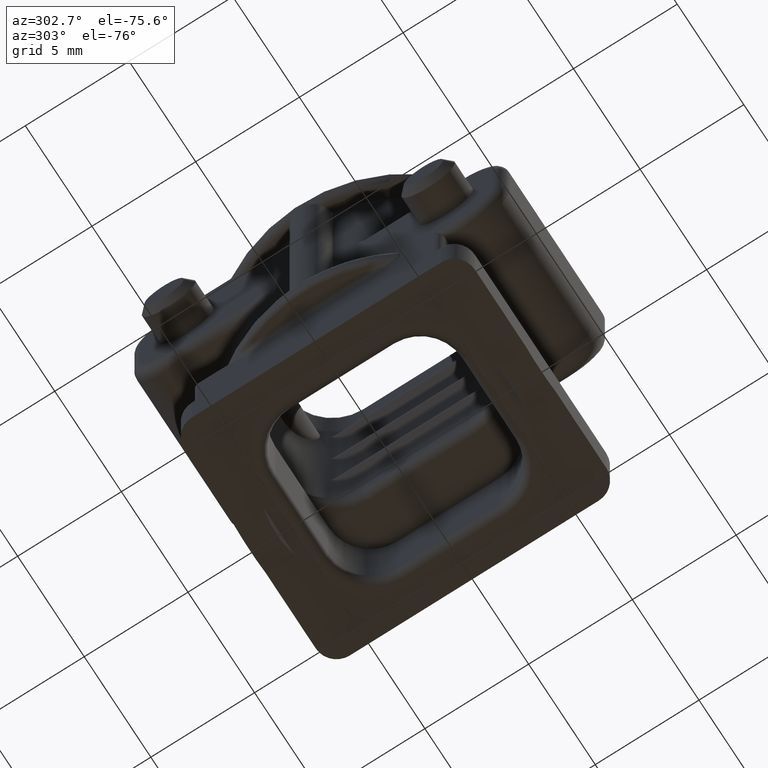
[diagram: clean part render]
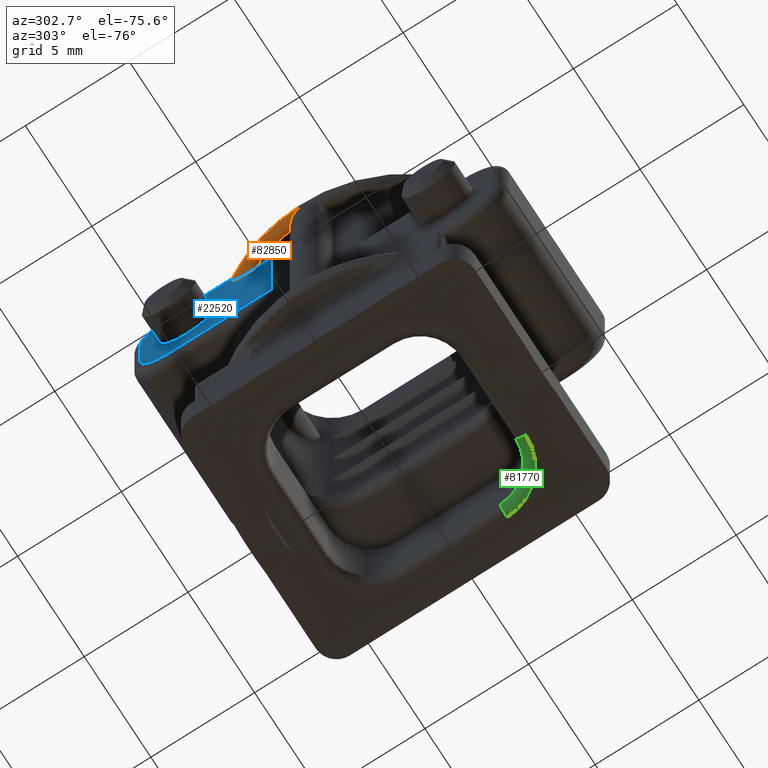
[diagram: same view with three faces highlighted in distinct colors, each labeled with its STEP entity id]
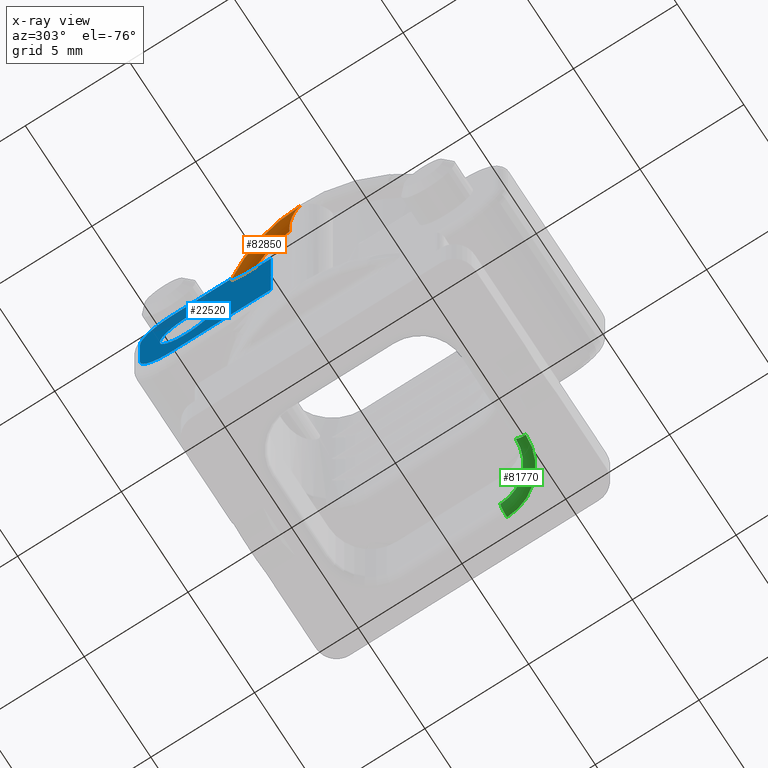
[diagram: x-ray of the same camera — body ghosted, the three highlighted faces saturated]
A machine part, auxiliary view with three faces highlighted in distinct colors.
The next image is the same camera in x-ray (body ghosted, the three faces saturated) — at least one of them is partly hidden behind the body in this view.
Their STEP definitions:

[orange] entity #82850 — the highlighted toroidal blend (fillet) surface has major radius 7.6 mm and minor (blend) radius 0.5 mm.
#11130=CARTESIAN_POINT('',(25.2744043500691,-40.2911187952982,
-3.81774899736046));
#11140=DIRECTION('',(0.,0.,-1.));
#11150=DIRECTION('',(-1.,0.,0.));
#11160=AXIS2_PLACEMENT_3D('',#11130,#11140,#11150);
#11170=CIRCLE('',#11160,7.6);
#12160=CARTESIAN_POINT('',(28.234134067477,-47.2911187952982,
-3.81774899735987));
#12170=VERTEX_POINT('',#12160);
#12200=CARTESIAN_POINT('',(26.1688467888733,-47.8383018938897,
-3.81774899736046));
#12210=VERTEX_POINT('',#12200);
#12220=EDGE_CURVE('',#12170,#12210,#11170,.T.);
#21240=CARTESIAN_POINT('',(34.6744043500691,-47.2911187952982,
-5.0177489973605));
#21250=DIRECTION('',(0.,-1.,0.));
#21260=DIRECTION('',(1.,0.,0.));
#21270=AXIS2_PLACEMENT_3D('',#21240,#21250,#21260);
#21280=PLANE('',#21270);
#21580=CARTESIAN_POINT('',(29.349941124532,-47.2911187952982,
-4.31774899736046));
#21590=VERTEX_POINT('',#21580);
#21620=CARTESIAN_POINT('',(25.2744043500691,-40.2911187952982,
-4.31774899736046));
#21630=DIRECTION('',(0.,0.,-1.));
#21640=DIRECTION('',(-1.,0.,0.));
#21650=AXIS2_PLACEMENT_3D('',#21620,#21630,#21640);
#21660=TOROIDAL_SURFACE('',#21650,7.6,0.5);
#21670=CARTESIAN_POINT('',(28.2341340660951,-47.2911187952982,
-3.81774899736046));
#21680=CARTESIAN_POINT('',(28.2617668507409,-47.2911187952982,
-3.81774899734903));
#21690=CARTESIAN_POINT('',(28.2893893469122,-47.2911187952982,
-3.81809613259291));
#21700=CARTESIAN_POINT('',(28.3169878803172,-47.2911187952982,
-3.8188160237318));
#21710=CARTESIAN_POINT('',(28.344586408875,-47.2911187952982,
-3.81953591474424));
#21720=CARTESIAN_POINT('',(28.372161139452,-47.2911187952982,
-3.82062849622026));
#21730=CARTESIAN_POINT('',(28.3996983132343,-47.2911187952982,
-3.82212332592674));
#21740=CARTESIAN_POINT('',(28.4272354574771,-47.2911187952982,
-3.82361815402971));
#21750=CARTESIAN_POINT('',(28.4547352877548,-47.2911187952982,
-3.8255151492305));
#21760=CARTESIAN_POINT('',(28.4821831735656,-47.2911187952982,
-3.82784899415511));
#21770=CARTESIAN_POINT('',(28.5096309913831,-47.2911187952982,
-3.83018283329837));
#21780=CARTESIAN_POINT('',(28.5370272235013,-47.2911187952982,
-3.8329534238558));
#21790=CARTESIAN_POINT('',(28.5643551183012,-47.2911187952982,
-3.83620213202777));
#21800=CARTESIAN_POINT('',(28.5916828868742,-47.2911187952982,
-3.83945082519402));
#21810=CARTESIAN_POINT('',(28.6189428515391,-47.2911187952979,
-3.84317752054874));
#21820=CARTESIAN_POINT('',(28.6461142096592,-47.2911187952979,
-3.84743232150843));
#21830=CARTESIAN_POINT('',(28.6732762543213,-47.2911187952979,
-3.85168566406071));
#21840=CARTESIAN_POINT('',(28.700372349795,-47.2911187952916,
-3.85646880979826));
#21850=CARTESIAN_POINT('',(28.7274516395234,-47.2911187952916,
-3.86186508447392));
#21860=CARTESIAN_POINT('',(28.7545194386964,-47.2911187952916,
-3.86725906934826));
#21870=CARTESIAN_POINT('',(28.781519623472,-47.2911187952982,
-3.87325730373493));
#21880=CARTESIAN_POINT('',(28.8083549990717,-47.2911187952982,
-3.87992774075186));
#21890=CARTESIAN_POINT('',(28.8351904397147,-47.2911187952982,
-3.88659819393652));
#21900=CARTESIAN_POINT('',(28.8618621638242,-47.2911187952982,
-3.89394051677914));
#21910=CARTESIAN_POINT('',(28.8882734864024,-47.2911187952982,
-3.90203759428819));
#21920=CARTESIAN_POINT('',(28.9146846597917,-47.2911187952982,
-3.91013462605951));
#21930=CARTESIAN_POINT('',(28.940837918133,-47.2911187952982,
-3.91898616256404));
#21940=CARTESIAN_POINT('',(28.9666291616619,-47.2911187952982,
-3.92869985181431));
#21950=CARTESIAN_POINT('',(28.9795249123902,-47.2911187952982,
-3.93355674501075));
#21960=CARTESIAN_POINT('',(28.9923303318061,-47.2911187952982,
-3.93862975954585));
#21970=CARTESIAN_POINT('',(29.0050306684643,-47.2911187952982,
-3.94393582631216));
#21980=CARTESIAN_POINT('',(29.0177309597933,-47.2911187952982,
-3.94924187414038));
#21990=CARTESIAN_POINT('',(29.0303263923132,-47.2911187952977,
-3.95478099977046));
#22000=CARTESIAN_POINT('',(29.0427997425518,-47.2911187952977,
-3.96057304199236));
#22010=CARTESIAN_POINT('',(29.0552724408358,-47.2911187952977,
-3.96636478147694));
#22020=CARTESIAN_POINT('',(29.0676189576271,-47.2911187952974,
-3.9724065145281));
#22030=CARTESIAN_POINT('',(29.0798662768933,-47.2911187952974,
-3.97874838640195));
#22040=CARTESIAN_POINT('',(29.0921086250104,-47.2911187952974,
-3.98508768412956));
#22050=CARTESIAN_POINT('',(29.1042278084583,-47.2911187952821,
-3.99171570623167));
#22060=CARTESIAN_POINT('',(29.1161733830871,-47.2911187952821,
-3.99864880529118));
#22070=CARTESIAN_POINT('',(29.128118966741,-47.2911187952821,
-4.00558190958875));
#22080=CARTESIAN_POINT('',(29.1398912042729,-47.2911187952707,
-4.01282010116949));
#22090=CARTESIAN_POINT('',(29.1514386744529,-47.2911187952707,
-4.02038291720448));
#22100=CARTESIAN_POINT('',(29.1629861168525,-47.2911187952707,
-4.02794571504514));
#22110=CARTESIAN_POINT('',(29.1743092871208,-47.29111879529,
-4.03583325227898));
#22120=CARTESIAN_POINT('',(29.1853536564091,-47.29111879529,
-4.04406957063015));
#22130=CARTESIAN_POINT('',(29.193250795672,-47.29111879529,
-4.0499588479021));
#22140=CARTESIAN_POINT('',(29.2010055118467,-47.291118795298,
-4.05602666073249));
#22150=CARTESIAN_POINT('',(29.2085959414436,-47.291118795298,
-4.06228359954816));
#22160=CARTESIAN_POINT('',(29.2161871904208,-47.291118795298,
-4.06854121379498));
#22170=CARTESIAN_POINT('',(29.2236053898536,-47.2911187952979,
-4.07497908570713));
#22180=CARTESIAN_POINT('',(29.2308760489727,-47.2911187952979,
-4.08165788541135));
#22190=CARTESIAN_POINT('',(29.2454096133672,-47.2911187952979,
-4.0950083621687));
#22200=CARTESIAN_POINT('',(29.2592643819548,-47.291118795288,
-4.10925079498732));
#22210=CARTESIAN_POINT('',(29.2720425410808,-47.291118795288,
-4.12435950871774));
#22220=CARTESIAN_POINT('',(29.2848205723018,-47.291118795288,
-4.1394680712152));
#22230=CARTESIAN_POINT('',(29.2965205216759,-47.2911187952982,
-4.15543993219067));
#22240=CARTESIAN_POINT('',(29.3067573885085,-47.2911187952982,
-4.17223802456296));
#22250=CARTESIAN_POINT('',(29.3118691497948,-47.2911187952982,
-4.18062612217902));
#22260=CARTESIAN_POINT('',(29.3166477893682,-47.291118795298,
-4.18927268802461));
#22270=CARTESIAN_POINT('',(29.3210221471526,-47.291118795298,
-4.19816037736906));
#22280=CARTESIAN_POINT('',(29.3253954756594,-47.291118795298,
-4.20704597545803));
#22290=CARTESIAN_POINT('',(29.3293583319413,-47.2911187952977,
-4.21616244888218));
#22300=CARTESIAN_POINT('',(29.3328379029034,-47.2911187952977,
-4.22545485291512));
#22310=CARTESIAN_POINT('',(29.3356112567838,-47.2911187952977,
-4.23286126165454));
#22320=CARTESIAN_POINT('',(29.3380773165981,-47.2911187952981,
-4.2403778818895));
#22330=CARTESIAN_POINT('',(29.3402083617646,-47.2911187952981,
-4.24797251397694));
#22340=CARTESIAN_POINT('',(29.3423394366998,-47.2911187952981,
-4.25556725215421));
#22350=CARTESIAN_POINT('',(29.3441351749372,-47.2911187952982,
-4.26323878513008));
#22360=CARTESIAN_POINT('',(29.3455779155125,-47.2911187952982,
-4.27095512273127));
#22370=CARTESIAN_POINT('',(29.3470201859384,-47.2911187952982,
-4.27866894579074));
#22380=CARTESIAN_POINT('',(29.3481115883914,-47.2911187952982,
-4.28643103623674));
#22390=CARTESIAN_POINT('',(29.3488428257513,-47.2911187952982,
-4.29424897498252));
#22400=CARTESIAN_POINT('',(29.3495736854138,-47.2911187952982,
-4.30206287562044));
#22410=CARTESIAN_POINT('',(29.349941124532,-47.2911187952982,
-4.30991245681078));
#22420=CARTESIAN_POINT('',(29.349941124532,-47.2911187952982,
-4.31774899736046));
#22430=B_SPLINE_CURVE_WITH_KNOTS('',3,(#21670,#21680,#21690,#21700,
#21710,#21720,#21730,#21740,#21750,#21760,#21770,#21780,#21790,#21800,
#21810,#21820,#21830,#21840,#21850,#21860,#21870,#21880,#21890,#21900,
#21910,#21920,#21930,#21940,#21950,#21960,#21970,#21980,#21990,#22000,
#22010,#22020,#22030,#22040,#22050,#22060,#22070,#22080,#22090,#22100,
#22110,#22120,#22130,#22140,#22150,#22160,#22170,#22180,#22190,#22200,
#22210,#22220,#22230,#22240,#22250,#22260,#22270,#22280,#22290,#22300,
#22310,#22320,#22330,#22340,#22350,#22360,#22370,#22380,#22390,#22400,
#22410,#22420),.UNSPECIFIED.,.F.,.F.,(4,3,3,3,3,3,3,3,3,3,3,3,3,3,3,3,3,
3,3,3,3,3,3,3,3,4),(0.,0.0828630328127764,0.165642296671064,
0.248328865766318,0.330928147989326,0.413459617645087,0.496073511777523,
0.578976313421166,0.661906837891696,0.744688078588756,0.786003819155731,
0.827277485990448,0.868563496174761,0.909970776366495,0.951400582243639,
0.992774647013941,1.02230643422067,1.05183565508567,1.11118841996579,
1.17038687921176,1.19998488616794,1.22973928973734,1.25343959922119,
1.27704887670283,1.30057864509959,1.32411284661636),.UNSPECIFIED.);
#22440=SURFACE_CURVE('',#22430,(#21660,#21280),.CURVE_3D.);
#22450=EDGE_CURVE('',#12170,#21590,#22440,.T.);
#23030=CARTESIAN_POINT('',(25.2744043500691,-47.3911187952982,
2.03225100263957));
#23040=DIRECTION('',(0.,0.,1.));
#23050=DIRECTION('',(0.,-1.,0.));
#23060=AXIS2_PLACEMENT_3D('',#23030,#23040,#23050);
#23070=CYLINDRICAL_SURFACE('',#23060,1.);
#23080=CARTESIAN_POINT('',(25.2744043500691,-40.2911187952982,
-4.31774899736046));
#23090=DIRECTION('',(0.,0.,-1.));
#23100=DIRECTION('',(-1.,0.,0.));
#23110=AXIS2_PLACEMENT_3D('',#23080,#23090,#23100);
#23120=TOROIDAL_SURFACE('',#23110,7.6,0.5);
#23130=CARTESIAN_POINT('',(25.2744043500691,-48.3911187952982,
-4.31774899736046));
#23140=CARTESIAN_POINT('',(25.317118778718,-48.3911187952982,
-4.28947115502783));
#23150=CARTESIAN_POINT('',(25.3598307285892,-48.3883854061547,
-4.26119444396546));
#23160=CARTESIAN_POINT('',(25.4023544055021,-48.38289940779,
-4.23315643197823));
#23170=CARTESIAN_POINT('',(25.4448608326167,-48.3774156348295,
-4.20512979365586));
#23180=CARTESIAN_POINT('',(25.4872239020171,-48.3691720165708,
-4.17731118624549));
#23190=CARTESIAN_POINT('',(25.5291552722855,-48.3581255003576,
-4.15002156139031));
#23200=CARTESIAN_POINT('',(25.5710655729296,-48.3470845347846,
-4.12274564899293));
#23210=CARTESIAN_POINT('',(25.6126381079587,-48.3332166349644,
-4.0959361551949));
#23220=CARTESIAN_POINT('',(25.6535050397346,-48.3164742227395,
-4.06999973954942));
#23230=CARTESIAN_POINT('',(25.673940786682,-48.30810208212,
-4.05703008404021));
#23240=CARTESIAN_POINT('',(25.6942303511187,-48.2989989491583,
-4.04426012646269));
#23250=CARTESIAN_POINT('',(25.7143160765821,-48.2891598148938,
-4.03175355998652));
#23260=CARTESIAN_POINT('',(25.7344087705136,-48.279317267076,
-4.01924265452796));
#23270=CARTESIAN_POINT('',(25.7542660917566,-48.2687564566531,
-4.00701429570952));
#23280=CARTESIAN_POINT('',(25.7739285387879,-48.2574187346291,
-3.99507673721049));
#23290=CARTESIAN_POINT('',(25.7935919432626,-48.246080460526,
-3.98313859742391));
#23300=CARTESIAN_POINT('',(25.8130481044691,-48.2339689018274,
-3.97149929473249));
#23310=CARTESIAN_POINT('',(25.8322165067527,-48.2210860222746,
-3.96024869198106));
#23320=CARTESIAN_POINT('',(25.8513848820921,-48.2082031608306,
-3.94899810504403));
#23330=CARTESIAN_POINT('',(25.8702652071632,-48.1945493080414,
-3.938136264406));
#23340=CARTESIAN_POINT('',(25.8887817940949,-48.180131061535,
-3.92775659539764));
#23350=CARTESIAN_POINT('',(25.9073052312582,-48.1657074809826,
-3.91737308641936));
#23360=CARTESIAN_POINT('',(25.9254357062473,-48.1505450118946,
-3.90748718385401));
#23370=CARTESIAN_POINT('',(25.9431856322715,-48.1345780050574,
-3.8981543814759));
#23380=CARTESIAN_POINT('',(25.960945712292,-48.1186018641579,
-3.88881624018871));
#23390=CARTESIAN_POINT('',(25.9783456270223,-48.1017960837793,
-3.88002217286255));
#23400=CARTESIAN_POINT('',(25.9952593343284,-48.084204714697,
-3.87191968429773));
#23410=CARTESIAN_POINT('',(26.0121730022573,-48.0666133865696,
-3.86381721459652));
#23420=CARTESIAN_POINT('',(26.0285992473815,-48.0482378327559,
-3.85640670579848));
#23430=CARTESIAN_POINT('',(26.0444263538991,-48.0291361254842,
-3.84983781164049));
#23440=CARTESIAN_POINT('',(26.0523398603004,-48.0195853284005,
-3.84655338400924));
#23450=CARTESIAN_POINT('',(26.060103732444,-48.0098532938264,
-3.84347943981907));
#23460=CARTESIAN_POINT('',(26.0677055500923,-47.9999481688025,
-3.84063511640087));
#23470=CARTESIAN_POINT('',(26.0753047763355,-47.9900464203648,
-3.83779176259212));
#23480=CARTESIAN_POINT('',(26.0827693407061,-47.9799358962536,
-3.83516772803519));
#23490=CARTESIAN_POINT('',(26.0900764273043,-47.9696333261604,
-3.83279014996445));
#23500=CARTESIAN_POINT('',(26.0973833869049,-47.9593309351266,
-3.83041261321616));
#23510=CARTESIAN_POINT('',(26.1045322355265,-47.9488373258007,
-3.82828177030007));
#23520=CARTESIAN_POINT('',(26.1115008157367,-47.9381741006988,
-3.82642420015112));
#23530=CARTESIAN_POINT('',(26.1184693888674,-47.9275108864299,
-3.82456663188931));
#23540=CARTESIAN_POINT('',(26.1252575274218,-47.9166782952238,
-3.82298239193049));
#23550=CARTESIAN_POINT('',(26.1318457277391,-47.9057004543761,
-3.82169659316577));
#23560=CARTESIAN_POINT('',(26.1384339352892,-47.8947226014767,
-3.82041079298949));
#23570=CARTESIAN_POINT('',(26.1448220407102,-47.8835997750305,
-3.81942346905822));
#23580=CARTESIAN_POINT('',(26.1509937615474,-47.8723578249748,
-3.81875802040635));
#23590=CARTESIAN_POINT('',(26.1571655040937,-47.8611158353753,
-3.81809256941377));
#23600=CARTESIAN_POINT('',(26.1631207129145,-47.8497550220636,
-3.81774899736046));
#23610=CARTESIAN_POINT('',(26.1688467888733,-47.8383018938898,
-3.81774899736046));
#23620=B_SPLINE_CURVE_WITH_KNOTS('',3,(#23130,#23140,#23150,#23160,
#23170,#23180,#23190,#23200,#23210,#23220,#23230,#23240,#23250,#23260,
#23270,#23280,#23290,#23300,#23310,#23320,#23330,#23340,#23350,#23360,
#23370,#23380,#23390,#23400,#23410,#23420,#23430,#23440,#23450,#23460,
#23470,#23480,#23490,#23500,#23510,#23520,#23530,#23540,#23550,#23560,
#23570,#23580,#23590,#23600,#23610),.UNSPECIFIED.,.F.,.F.,(4,3,3,3,3,3,3
,3,3,3,3,3,3,3,3,3,4),(0.,0.15367931288939,0.307391723260433,
0.461105000399218,0.537973049431023,0.614839106419516,0.691864257961331,
0.768905373858872,0.845809266634203,0.922887400847619,0.999971232127972,
1.0384271714949,1.07691528339268,1.11551060416675,1.15412707138077,
1.19269498645642,1.23116664856787),.UNSPECIFIED.);
#23630=SURFACE_CURVE('',#23620,(#23120,#23070),.CURVE_3D.);
#23640=CARTESIAN_POINT('',(25.2744043500691,-48.3911187952982,
-4.31774899736046));
#23650=VERTEX_POINT('',#23640);
#23660=EDGE_CURVE('',#23650,#12210,#23630,.T.);
#38290=CARTESIAN_POINT('',(25.2744043500691,-40.2911187952982,
-4.31774899736046));
#38300=DIRECTION('',(0.,0.,-1.));
#38310=DIRECTION('',(-1.,0.,0.));
#38320=AXIS2_PLACEMENT_3D('',#38290,#38300,#38310);
#38330=CIRCLE('',#38320,8.1);
#38340=EDGE_CURVE('',#21590,#23650,#38330,.T.);
#82790=ORIENTED_EDGE('',*,*,#12220,.T.);
#82800=ORIENTED_EDGE('',*,*,#22450,.F.);
#82810=ORIENTED_EDGE('',*,*,#38340,.F.);
#82820=ORIENTED_EDGE('',*,*,#23660,.F.);
#82830=EDGE_LOOP('',(#82820,#82810,#82800,#82790));
#82840=FACE_OUTER_BOUND('',#82830,.T.);
#82850=ADVANCED_FACE('',(#82840),#23120,.T.);

[blue] entity #22520 — the highlighted planar face has unit normal (-1, 0, 0).
#8500=CARTESIAN_POINT('',(29.349941124532,-47.2911187952982,
-4.5177489973605));
#8510=VERTEX_POINT('',#8500);
#8540=CARTESIAN_POINT('',(0.,-47.2911187952982,-4.5177489973605));
#8550=DIRECTION('',(1.,0.,0.));
#8560=VECTOR('',#8550,1.);
#8570=LINE('',#8540,#8560);
#8580=CARTESIAN_POINT('',(32.2244043245911,-47.2911187952982,
-4.5177489973605));
#8590=VERTEX_POINT('',#8580);
#8600=EDGE_CURVE('',#8510,#8590,#8570,.T.);
#11350=CARTESIAN_POINT('',(33.7244043245911,-47.2911187952982,
-0.217748997360453));
#11360=VERTEX_POINT('',#11350);
#11520=CARTESIAN_POINT('',(33.7244043245911,-47.2911187952982,
-3.0177489973605));
#11530=VERTEX_POINT('',#11520);
#11560=CARTESIAN_POINT('',(33.7244043245911,-47.2911187952982,0.));
#11570=DIRECTION('',(0.,0.,-1.));
#11580=VECTOR('',#11570,1.);
#11590=LINE('',#11560,#11580);
#11600=EDGE_CURVE('',#11360,#11530,#11590,.T.);
#12080=CARTESIAN_POINT('',(27.4168328786319,-47.2911187952982,
-3.81774899736046));
#12090=VERTEX_POINT('',#12080);
#12120=CARTESIAN_POINT('',(0.,-47.2911187952982,-3.81774899736046));
#12130=DIRECTION('',(-1.,0.,0.));
#12140=VECTOR('',#12130,1.);
#12150=LINE('',#12120,#12140);
#12160=CARTESIAN_POINT('',(28.234134067477,-47.2911187952982,
-3.81774899735987));
#12170=VERTEX_POINT('',#12160);
#12180=EDGE_CURVE('',#12170,#12090,#12150,.T.);
#12480=CARTESIAN_POINT('',(27.4168328786319,-47.2911187952982,
1.28225100263955));
#12490=VERTEX_POINT('',#12480);
#12520=CARTESIAN_POINT('',(27.4168328786319,-47.2911187952982,
2.83225100263954));
#12530=DIRECTION('',(0.,0.,-1.));
#12540=VECTOR('',#12530,1.);
#12550=LINE('',#12520,#12540);
#12560=EDGE_CURVE('',#12490,#12090,#12550,.T.);
#13530=CARTESIAN_POINT('',(32.2244043245911,-47.2911187952982,
1.28225100263955));
#13540=VERTEX_POINT('',#13530);
#13570=CARTESIAN_POINT('',(0.,-47.2911187952982,1.28225100263955));
#13580=DIRECTION('',(1.,0.,0.));
#13590=VECTOR('',#13580,1.);
#13600=LINE('',#13570,#13590);
#13610=EDGE_CURVE('',#12490,#13540,#13600,.T.);
#14450=CARTESIAN_POINT('',(32.2244043245911,-47.2911187952982,
-3.0177489973605));
#14460=DIRECTION('',(-2.98367354015269E-16,-1.,0.));
#14470=DIRECTION('',(-1.,2.98367354015269E-16,0.));
#14480=AXIS2_PLACEMENT_3D('',#14450,#14460,#14470);
#14490=CIRCLE('',#14480,1.5);
#14500=EDGE_CURVE('',#8590,#11530,#14490,.T.);
#21240=CARTESIAN_POINT('',(34.6744043500691,-47.2911187952982,
-5.0177489973605));
#21250=DIRECTION('',(0.,-1.,0.));
#21260=DIRECTION('',(1.,0.,0.));
#21270=AXIS2_PLACEMENT_3D('',#21240,#21250,#21260);
#21280=PLANE('',#21270);
#21290=CARTESIAN_POINT('',(31.4744043245911,-47.2911187952982,
-1.41774899736045));
#21300=DIRECTION('',(0.,-1.,0.));
#21310=DIRECTION('',(1.,0.,0.));
#21320=AXIS2_PLACEMENT_3D('',#21290,#21300,#21310);
#21330=CIRCLE('',#21320,1.3);
#21340=CARTESIAN_POINT('',(32.7744043245911,-47.2911187952982,
-1.41774899736045));
#21350=VERTEX_POINT('',#21340);
#21360=CARTESIAN_POINT('',(30.1744043245911,-47.2911187952982,
-1.41774899736045));
#21370=VERTEX_POINT('',#21360);
#21380=EDGE_CURVE('',#21350,#21370,#21330,.T.);
#21390=ORIENTED_EDGE('',*,*,#21380,.F.);
#21400=EDGE_CURVE('',#21370,#21350,#21330,.T.);
#21410=ORIENTED_EDGE('',*,*,#21400,.F.);
#21420=EDGE_LOOP('',(#21410,#21390));
#21430=FACE_BOUND('',#21420,.T.);
#21440=CARTESIAN_POINT('',(32.2244043245911,-47.2911187952982,
-0.217748997360453));
#21450=DIRECTION('',(2.98367354015269E-16,1.,0.));
#21460=DIRECTION('',(1.,-2.98367354015269E-16,0.));
#21470=AXIS2_PLACEMENT_3D('',#21440,#21450,#21460);
#21480=CIRCLE('',#21470,1.5);
#21490=EDGE_CURVE('',#13540,#11360,#21480,.T.);
#21500=ORIENTED_EDGE('',*,*,#21490,.F.);
#21510=ORIENTED_EDGE('',*,*,#11600,.F.);
#21520=ORIENTED_EDGE('',*,*,#14500,.T.);
#21530=ORIENTED_EDGE('',*,*,#8600,.T.);
#21540=CARTESIAN_POINT('',(29.349941124532,-47.2911187952982,
9.1322510026395));
#21550=DIRECTION('',(0.,0.,-1.));
#21560=VECTOR('',#21550,1.);
#21570=LINE('',#21540,#21560);
#21580=CARTESIAN_POINT('',(29.349941124532,-47.2911187952982,
-4.31774899736046));
#21590=VERTEX_POINT('',#21580);
#21600=EDGE_CURVE('',#21590,#8510,#21570,.T.);
#21610=ORIENTED_EDGE('',*,*,#21600,.T.);
#21620=CARTESIAN_POINT('',(25.2744043500691,-40.2911187952982,
-4.31774899736046));
#21630=DIRECTION('',(0.,0.,-1.));
#21640=DIRECTION('',(-1.,0.,0.));
#21650=AXIS2_PLACEMENT_3D('',#21620,#21630,#21640);
#21660=TOROIDAL_SURFACE('',#21650,7.6,0.5);
#21670=CARTESIAN_POINT('',(28.2341340660951,-47.2911187952982,
-3.81774899736046));
#21680=CARTESIAN_POINT('',(28.2617668507409,-47.2911187952982,
-3.81774899734903));
#21690=CARTESIAN_POINT('',(28.2893893469122,-47.2911187952982,
-3.81809613259291));
#21700=CARTESIAN_POINT('',(28.3169878803172,-47.2911187952982,
-3.8188160237318));
#21710=CARTESIAN_POINT('',(28.344586408875,-47.2911187952982,
-3.81953591474424));
#21720=CARTESIAN_POINT('',(28.372161139452,-47.2911187952982,
-3.82062849622026));
#21730=CARTESIAN_POINT('',(28.3996983132343,-47.2911187952982,
-3.82212332592674));
#21740=CARTESIAN_POINT('',(28.4272354574771,-47.2911187952982,
-3.82361815402971));
#21750=CARTESIAN_POINT('',(28.4547352877548,-47.2911187952982,
-3.8255151492305));
#21760=CARTESIAN_POINT('',(28.4821831735656,-47.2911187952982,
-3.82784899415511));
#21770=CARTESIAN_POINT('',(28.5096309913831,-47.2911187952982,
-3.83018283329837));
#21780=CARTESIAN_POINT('',(28.5370272235013,-47.2911187952982,
-3.8329534238558));
#21790=CARTESIAN_POINT('',(28.5643551183012,-47.2911187952982,
-3.83620213202777));
#21800=CARTESIAN_POINT('',(28.5916828868742,-47.2911187952982,
-3.83945082519402));
#21810=CARTESIAN_POINT('',(28.6189428515391,-47.2911187952979,
-3.84317752054874));
#21820=CARTESIAN_POINT('',(28.6461142096592,-47.2911187952979,
-3.84743232150843));
#21830=CARTESIAN_POINT('',(28.6732762543213,-47.2911187952979,
-3.85168566406071));
#21840=CARTESIAN_POINT('',(28.700372349795,-47.2911187952916,
-3.85646880979826));
#21850=CARTESIAN_POINT('',(28.7274516395234,-47.2911187952916,
-3.86186508447392));
#21860=CARTESIAN_POINT('',(28.7545194386964,-47.2911187952916,
-3.86725906934826));
#21870=CARTESIAN_POINT('',(28.781519623472,-47.2911187952982,
-3.87325730373493));
#21880=CARTESIAN_POINT('',(28.8083549990717,-47.2911187952982,
-3.87992774075186));
#21890=CARTESIAN_POINT('',(28.8351904397147,-47.2911187952982,
-3.88659819393652));
#21900=CARTESIAN_POINT('',(28.8618621638242,-47.2911187952982,
-3.89394051677914));
#21910=CARTESIAN_POINT('',(28.8882734864024,-47.2911187952982,
-3.90203759428819));
#21920=CARTESIAN_POINT('',(28.9146846597917,-47.2911187952982,
-3.91013462605951));
#21930=CARTESIAN_POINT('',(28.940837918133,-47.2911187952982,
-3.91898616256404));
#21940=CARTESIAN_POINT('',(28.9666291616619,-47.2911187952982,
-3.92869985181431));
#21950=CARTESIAN_POINT('',(28.9795249123902,-47.2911187952982,
-3.93355674501075));
#21960=CARTESIAN_POINT('',(28.9923303318061,-47.2911187952982,
-3.93862975954585));
#21970=CARTESIAN_POINT('',(29.0050306684643,-47.2911187952982,
-3.94393582631216));
#21980=CARTESIAN_POINT('',(29.0177309597933,-47.2911187952982,
-3.94924187414038));
#21990=CARTESIAN_POINT('',(29.0303263923132,-47.2911187952977,
-3.95478099977046));
#22000=CARTESIAN_POINT('',(29.0427997425518,-47.2911187952977,
-3.96057304199236));
#22010=CARTESIAN_POINT('',(29.0552724408358,-47.2911187952977,
-3.96636478147694));
#22020=CARTESIAN_POINT('',(29.0676189576271,-47.2911187952974,
-3.9724065145281));
#22030=CARTESIAN_POINT('',(29.0798662768933,-47.2911187952974,
-3.97874838640195));
#22040=CARTESIAN_POINT('',(29.0921086250104,-47.2911187952974,
-3.98508768412956));
#22050=CARTESIAN_POINT('',(29.1042278084583,-47.2911187952821,
-3.99171570623167));
#22060=CARTESIAN_POINT('',(29.1161733830871,-47.2911187952821,
-3.99864880529118));
#22070=CARTESIAN_POINT('',(29.128118966741,-47.2911187952821,
-4.00558190958875));
#22080=CARTESIAN_POINT('',(29.1398912042729,-47.2911187952707,
-4.01282010116949));
#22090=CARTESIAN_POINT('',(29.1514386744529,-47.2911187952707,
-4.02038291720448));
#22100=CARTESIAN_POINT('',(29.1629861168525,-47.2911187952707,
-4.02794571504514));
#22110=CARTESIAN_POINT('',(29.1743092871208,-47.29111879529,
-4.03583325227898));
#22120=CARTESIAN_POINT('',(29.1853536564091,-47.29111879529,
-4.04406957063015));
#22130=CARTESIAN_POINT('',(29.193250795672,-47.29111879529,
-4.0499588479021));
#22140=CARTESIAN_POINT('',(29.2010055118467,-47.291118795298,
-4.05602666073249));
#22150=CARTESIAN_POINT('',(29.2085959414436,-47.291118795298,
-4.06228359954816));
#22160=CARTESIAN_POINT('',(29.2161871904208,-47.291118795298,
-4.06854121379498));
#22170=CARTESIAN_POINT('',(29.2236053898536,-47.2911187952979,
-4.07497908570713));
#22180=CARTESIAN_POINT('',(29.2308760489727,-47.2911187952979,
-4.08165788541135));
#22190=CARTESIAN_POINT('',(29.2454096133672,-47.2911187952979,
-4.0950083621687));
#22200=CARTESIAN_POINT('',(29.2592643819548,-47.291118795288,
-4.10925079498732));
#22210=CARTESIAN_POINT('',(29.2720425410808,-47.291118795288,
-4.12435950871774));
#22220=CARTESIAN_POINT('',(29.2848205723018,-47.291118795288,
-4.1394680712152));
#22230=CARTESIAN_POINT('',(29.2965205216759,-47.2911187952982,
-4.15543993219067));
#22240=CARTESIAN_POINT('',(29.3067573885085,-47.2911187952982,
-4.17223802456296));
#22250=CARTESIAN_POINT('',(29.3118691497948,-47.2911187952982,
-4.18062612217902));
#22260=CARTESIAN_POINT('',(29.3166477893682,-47.291118795298,
-4.18927268802461));
#22270=CARTESIAN_POINT('',(29.3210221471526,-47.291118795298,
-4.19816037736906));
#22280=CARTESIAN_POINT('',(29.3253954756594,-47.291118795298,
-4.20704597545803));
#22290=CARTESIAN_POINT('',(29.3293583319413,-47.2911187952977,
-4.21616244888218));
#22300=CARTESIAN_POINT('',(29.3328379029034,-47.2911187952977,
-4.22545485291512));
#22310=CARTESIAN_POINT('',(29.3356112567838,-47.2911187952977,
-4.23286126165454));
#22320=CARTESIAN_POINT('',(29.3380773165981,-47.2911187952981,
-4.2403778818895));
#22330=CARTESIAN_POINT('',(29.3402083617646,-47.2911187952981,
-4.24797251397694));
#22340=CARTESIAN_POINT('',(29.3423394366998,-47.2911187952981,
-4.25556725215421));
#22350=CARTESIAN_POINT('',(29.3441351749372,-47.2911187952982,
-4.26323878513008));
#22360=CARTESIAN_POINT('',(29.3455779155125,-47.2911187952982,
-4.27095512273127));
#22370=CARTESIAN_POINT('',(29.3470201859384,-47.2911187952982,
-4.27866894579074));
#22380=CARTESIAN_POINT('',(29.3481115883914,-47.2911187952982,
-4.28643103623674));
#22390=CARTESIAN_POINT('',(29.3488428257513,-47.2911187952982,
-4.29424897498252));
#22400=CARTESIAN_POINT('',(29.3495736854138,-47.2911187952982,
-4.30206287562044));
#22410=CARTESIAN_POINT('',(29.349941124532,-47.2911187952982,
-4.30991245681078));
#22420=CARTESIAN_POINT('',(29.349941124532,-47.2911187952982,
-4.31774899736046));
#22430=B_SPLINE_CURVE_WITH_KNOTS('',3,(#21670,#21680,#21690,#21700,
#21710,#21720,#21730,#21740,#21750,#21760,#21770,#21780,#21790,#21800,
#21810,#21820,#21830,#21840,#21850,#21860,#21870,#21880,#21890,#21900,
#21910,#21920,#21930,#21940,#21950,#21960,#21970,#21980,#21990,#22000,
#22010,#22020,#22030,#22040,#22050,#22060,#22070,#22080,#22090,#22100,
#22110,#22120,#22130,#22140,#22150,#22160,#22170,#22180,#22190,#22200,
#22210,#22220,#22230,#22240,#22250,#22260,#22270,#22280,#22290,#22300,
#22310,#22320,#22330,#22340,#22350,#22360,#22370,#22380,#22390,#22400,
#22410,#22420),.UNSPECIFIED.,.F.,.F.,(4,3,3,3,3,3,3,3,3,3,3,3,3,3,3,3,3,
3,3,3,3,3,3,3,3,4),(0.,0.0828630328127764,0.165642296671064,
0.248328865766318,0.330928147989326,0.413459617645087,0.496073511777523,
0.578976313421166,0.661906837891696,0.744688078588756,0.786003819155731,
0.827277485990448,0.868563496174761,0.909970776366495,0.951400582243639,
0.992774647013941,1.02230643422067,1.05183565508567,1.11118841996579,
1.17038687921176,1.19998488616794,1.22973928973734,1.25343959922119,
1.27704887670283,1.30057864509959,1.32411284661636),.UNSPECIFIED.);
#22440=SURFACE_CURVE('',#22430,(#21660,#21280),.CURVE_3D.);
#22450=EDGE_CURVE('',#12170,#21590,#22440,.T.);
#22460=ORIENTED_EDGE('',*,*,#22450,.T.);
#22470=ORIENTED_EDGE('',*,*,#12180,.F.);
#22480=ORIENTED_EDGE('',*,*,#12560,.T.);
#22490=ORIENTED_EDGE('',*,*,#13610,.F.);
#22500=EDGE_LOOP('',(#22490,#22480,#22470,#22460,#21610,#21530,#21520,
#21510,#21500));
#22510=FACE_OUTER_BOUND('',#22500,.T.);
#22520=ADVANCED_FACE('',(#21430,#22510),#21280,.T.);

[green] entity #81770 — the highlighted toroidal blend (fillet) surface has major radius 2.5 mm and minor (blend) radius 0.5 mm.
#550=CARTESIAN_POINT('',(22.724404350069,-36.8661187952982,
14.0822510026395));
#560=VERTEX_POINT('',#550);
#590=CARTESIAN_POINT('',(22.724404350069,-39.3661187952982,
14.0822510026395));
#600=DIRECTION('',(0.,0.,-1.));
#610=DIRECTION('',(-1.,0.,0.));
#620=AXIS2_PLACEMENT_3D('',#590,#600,#610);
#630=CIRCLE('',#620,2.5);
#640=CARTESIAN_POINT('',(20.224404350069,-39.3661187952982,
14.0822510026395));
#650=VERTEX_POINT('',#640);
#660=EDGE_CURVE('',#650,#560,#630,.T.);
#2490=CARTESIAN_POINT('',(20.224404350069,-39.3661187952982,
13.5822510026395));
#2500=DIRECTION('',(0.,1.,0.));
#2510=DIRECTION('',(1.,0.,0.));
#2520=AXIS2_PLACEMENT_3D('',#2490,#2500,#2510);
#2530=CIRCLE('',#2520,0.5);
#2540=CARTESIAN_POINT('',(20.724404350069,-39.3661187952982,
13.5822510026395));
#2550=VERTEX_POINT('',#2540);
#2560=EDGE_CURVE('',#650,#2550,#2530,.T.);
#3280=CARTESIAN_POINT('',(22.724404350069,-37.3661187952982,
13.5822510026395));
#3290=VERTEX_POINT('',#3280);
#3320=CARTESIAN_POINT('',(22.724404350069,-36.8661187952982,
13.5822510026395));
#3330=DIRECTION('',(1.,0.,0.));
#3340=DIRECTION('',(0.,-1.,0.));
#3350=AXIS2_PLACEMENT_3D('',#3320,#3330,#3340);
#3360=CIRCLE('',#3350,0.5);
#3370=EDGE_CURVE('',#560,#3290,#3360,.T.);
#81380=CARTESIAN_POINT('',(22.724404350069,-39.3661187952982,
13.5822510026395));
#81390=DIRECTION('',(0.,0.,-1.));
#81400=DIRECTION('',(-1.,0.,0.));
#81410=AXIS2_PLACEMENT_3D('',#81380,#81390,#81400);
#81420=CIRCLE('',#81410,2.);
#81430=EDGE_CURVE('',#2550,#3290,#81420,.T.);
#81660=CARTESIAN_POINT('',(22.724404350069,-39.3661187952982,
13.5822510026395));
#81670=DIRECTION('',(0.,0.,-1.));
#81680=DIRECTION('',(-1.,0.,0.));
#81690=AXIS2_PLACEMENT_3D('',#81660,#81670,#81680);
#81700=TOROIDAL_SURFACE('',#81690,2.5,0.5);
#81710=ORIENTED_EDGE('',*,*,#2560,.T.);
#81720=ORIENTED_EDGE('',*,*,#660,.F.);
#81730=ORIENTED_EDGE('',*,*,#3370,.F.);
#81740=ORIENTED_EDGE('',*,*,#81430,.T.);
#81750=EDGE_LOOP('',(#81740,#81730,#81720,#81710));
#81760=FACE_OUTER_BOUND('',#81750,.T.);
#81770=ADVANCED_FACE('',(#81760),#81700,.T.);